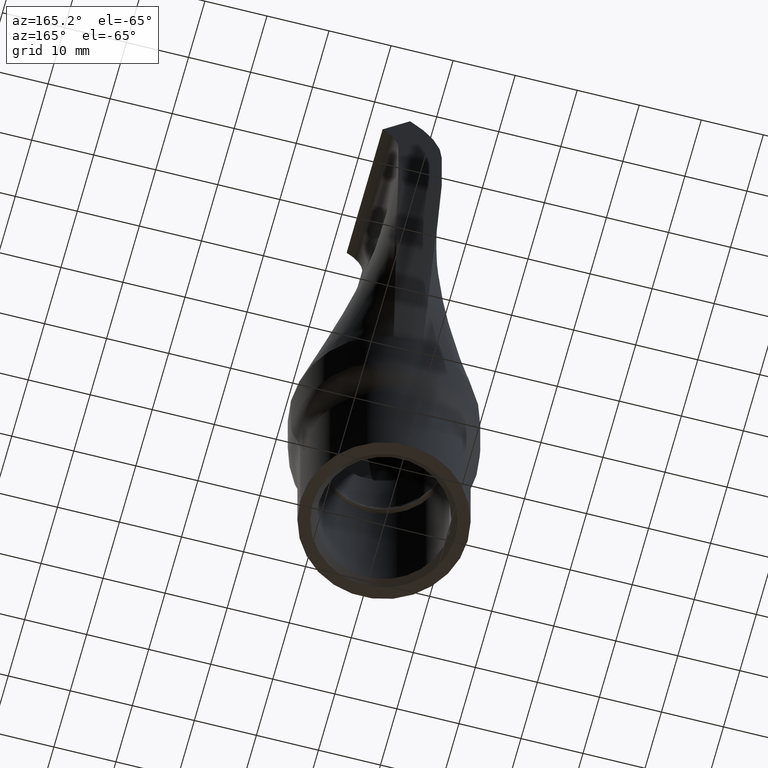
[diagram: clean part render]
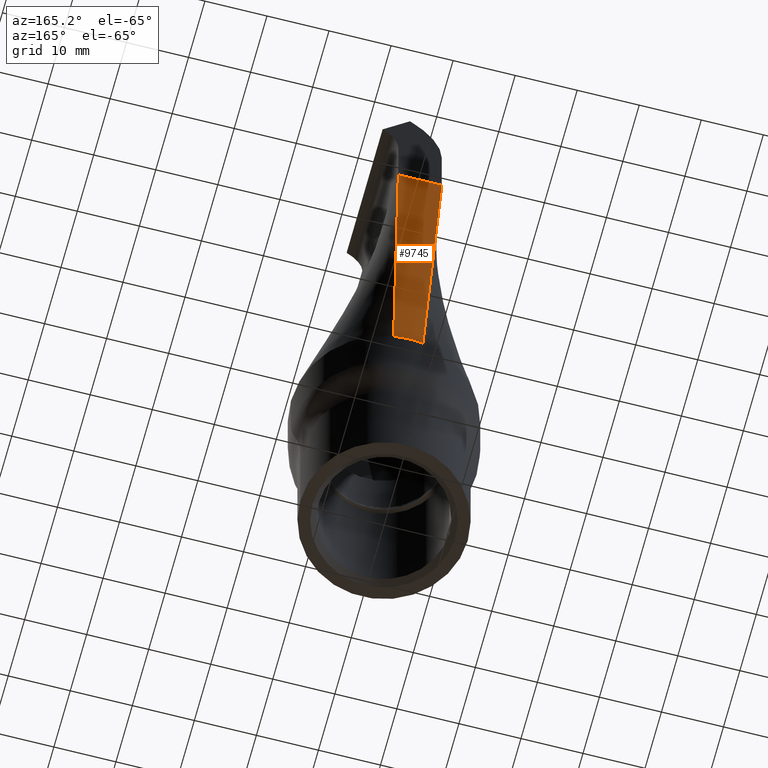
[diagram: same view with one face highlighted and labeled with its STEP entity id]
A machine part, auxiliary view. The second image highlights one B-rep face of the part: STEP entity #9745.
In plain terms, the highlighted face is a freeform B-spline surface patch.
Its self-contained STEP definition (entity closure, byte-faithful):
#513 = EDGE_CURVE ( 'NONE', #14015, #10929, #13533, .T. ) ;
#580 = ORIENTED_EDGE ( 'NONE', *, *, #513, .T. ) ;
#801 = CARTESIAN_POINT ( 'NONE',  ( 2.360731191527843700, 14.73934844198453000, 35.56000000000000200 ) ) ;
#851 = CARTESIAN_POINT ( 'NONE',  ( 2.356725731026977100, 14.81370459502670500, 36.00000000000000700 ) ) ;
#905 = CARTESIAN_POINT ( 'NONE',  ( 3.570000000000002900, 22.00000000000000400, 80.00000000000000000 ) ) ;
#1311 = DIRECTION ( 'NONE',  ( -0.02563530597302266300, -0.1611362089732852600, -0.9865991857108880000 ) ) ;
#1921 = CARTESIAN_POINT ( 'NONE',  ( 2.376169394718439700, 14.73685524299208700, 35.56000000000000200 ) ) ;
#1974 = CARTESIAN_POINT ( 'NONE',  ( 1.170466111313001500, 22.07070000000000200, 80.44439999999998700 ) ) ;
#2020 = CARTESIAN_POINT ( 'NONE',  ( -3.546666666666664200, 22.00000000000000400, 80.00000000000000000 ) ) ;
#2021 = LINE ( 'NONE', #7108, #3357 ) ;
#2136 = VERTEX_POINT ( 'NONE', #11332 ) ;
#3158 = CARTESIAN_POINT ( 'NONE',  ( 2.345292988337247300, 14.74184164097697400, 35.56000000000000200 ) ) ;
#3231 = ORIENTED_EDGE ( 'NONE', *, *, #4358, .T. ) ;
#3355 = CARTESIAN_POINT ( 'NONE',  ( -3.523333333333331200, 22.00000000000000400, 80.00000000000000000 ) ) ;
#3357 = VECTOR ( 'NONE', #10604, 1000.000000000000000 ) ;
#3413 = B_SPLINE_CURVE_WITH_KNOTS ( 'NONE', 3,
 ( #15667, #12025, #7240, #3523 ),
 .UNSPECIFIED., .F., .F.,
 ( 4, 4 ),
 ( 0.0000000000000000000, 0.004729419399636634900 ),
 .UNSPECIFIED. ) ;
#3523 = CARTESIAN_POINT ( 'NONE',  ( -2.356730390204583100, 14.81373377979307700, 36.00000000000000700 ) ) ;
#4354 = CARTESIAN_POINT ( 'NONE',  ( -2.340932838378592300, 22.07133498409400800, 80.44439999999998700 ) ) ;
#4358 = EDGE_CURVE ( 'NONE', #10929, #2136, #4780, .T. ) ;
#4409 = CARTESIAN_POINT ( 'NONE',  ( -1.166666666666667200, 22.00000000000000400, 79.99999999999998600 ) ) ;
#4510 = CARTESIAN_POINT ( 'NONE',  ( -2.333333333333333000, 22.00000000000000400, 79.99999999999998600 ) ) ;
#4562 = CARTESIAN_POINT ( 'NONE',  ( 2.333333333333333500, 22.00000000000000400, 79.99999999999998600 ) ) ;
#4780 = LINE ( 'NONE', #10778, #10851 ) ;
#4992 = VECTOR ( 'NONE', #5752, 1000.000000000000000 ) ;
#5611 = CARTESIAN_POINT ( 'NONE',  ( -3.511547070116625600, 22.07258158359023200, 80.44440000000000200 ) ) ;
#5717 = CARTESIAN_POINT ( 'NONE',  ( -1.580907091228487300, 14.93713028772192100, 36.00000000000000700 ) ) ;
#5752 = DIRECTION ( 'NONE',  ( 1.000000000000000000, 0.0000000000000000000, 0.0000000000000000000 ) ) ;
#5764 = CARTESIAN_POINT ( 'NONE',  ( 3.581783924020912400, 22.07265637956000500, 80.44440000000000200 ) ) ;
#5910 = EDGE_LOOP ( 'NONE', ( #12638, #6554, #580, #3231 ) ) ;
#6554 = ORIENTED_EDGE ( 'NONE', *, *, #13300, .T. ) ;
#6787 = CARTESIAN_POINT ( 'NONE',  ( 2.372242103822946600, 14.81123608117280100, 36.00000000000000700 ) ) ;
#6840 = CARTESIAN_POINT ( 'NONE',  ( 2.403274849414886100, 14.80629905346499300, 36.00000000000000700 ) ) ;
#6943 = CARTESIAN_POINT ( 'NONE',  ( -3.558371639386146400, 22.07263144757008200, 80.44440000000000200 ) ) ;
#7108 = CARTESIAN_POINT ( 'NONE',  ( -2.928362865513486600, 18.40685229751335700, 58.00000000000000000 ) ) ;
#7240 = CARTESIAN_POINT ( 'NONE',  ( -0.7971672668034427400, 15.06181617058033200, 36.00000001015075700 ) ) ;
#7393 = CARTESIAN_POINT ( 'NONE',  ( -2.356730390204583100, 14.81373377979307700, 36.00000000000000700 ) ) ;
#7983 = CARTESIAN_POINT ( 'NONE',  ( -3.534959354751386200, 22.07260651558015500, 80.44440000000000200 ) ) ;
#8083 = CARTESIAN_POINT ( 'NONE',  ( -2.360731191527842400, 14.73934844198453000, 35.56000000000000200 ) ) ;
#8192 = CARTESIAN_POINT ( 'NONE',  ( -2.356725731026975800, 14.81370459502670500, 36.00000000000000700 ) ) ;
#8619 = CARTESIAN_POINT ( 'NONE',  ( 3.500000000000002200, 22.00000000000000400, 79.99999999999998600 ) ) ;
#9193 = CARTESIAN_POINT ( 'NONE',  ( 0.7904840284156128300, 15.00000000000000200, 36.00000000000000000 ) ) ;
#9242 = CARTESIAN_POINT ( 'NONE',  ( 3.511547070116629600, 22.07258158359023200, 80.44440000000000200 ) ) ;
#9282 = CARTESIAN_POINT ( 'NONE',  ( -3.499999999999997800, 22.00000000000000400, 80.00000000000000000 ) ) ;
#9297 = CARTESIAN_POINT ( 'NONE',  ( -2.372242103822945800, 14.81123608117280100, 36.00000000000000700 ) ) ;
#9345 = CARTESIAN_POINT ( 'NONE',  ( -0.7867222020331007300, 14.92999999999999800, 35.55999999999999500 ) ) ;
#9394 = CARTESIAN_POINT ( 'NONE',  ( -3.499999999999997800, 22.00000000000000400, 80.00000000000000000 ) ) ;
#9607 = CARTESIAN_POINT ( 'NONE',  ( -3.569999999999997200, 22.00000000000000400, 80.00000000000000000 ) ) ;
#9745 = ADVANCED_FACE ( 'NONE', ( #11181 ), #12004, .T. ) ;
#10401 = CARTESIAN_POINT ( 'NONE',  ( -2.391607597909034800, 14.73436204399964400, 35.56000000000000200 ) ) ;
#10454 = CARTESIAN_POINT ( 'NONE',  ( -1.573382828807438700, 14.86650159059913900, 35.56000000000000200 ) ) ;
#10503 = CARTESIAN_POINT ( 'NONE',  ( 1.580907091228488200, 14.93713028772191900, 36.00000000000000700 ) ) ;
#10555 = CARTESIAN_POINT ( 'NONE',  ( 2.387758476618916600, 14.80876756731889700, 36.00000000000000700 ) ) ;
#10604 = DIRECTION ( 'NONE',  ( -0.02563530597302259700, 0.1611362089732852600, 0.9865991857108880000 ) ) ;
#10610 = CARTESIAN_POINT ( 'NONE',  ( 3.500000000000002200, 22.00000000000000400, 80.00000000000000000 ) ) ;
#10617 = CARTESIAN_POINT ( 'NONE',  ( -3.499999999999997800, 22.00000000000000400, 80.00000000000000000 ) ) ;
#10778 = CARTESIAN_POINT ( 'NONE',  ( 2.928362865513489700, 18.40685229751335700, 58.00000000000000000 ) ) ;
#10830 = VERTEX_POINT ( 'NONE', #7393 ) ;
#10851 = VECTOR ( 'NONE', #1311, 1000.000000000000000 ) ;
#10929 = VERTEX_POINT ( 'NONE', #8619 ) ;
#11181 = FACE_OUTER_BOUND ( 'NONE', #5910, .T. ) ;
#11332 = CARTESIAN_POINT ( 'NONE',  ( 2.356732032253578500, 14.81374406239035000, 36.00000000000000700 ) ) ;
#11359 = EDGE_CURVE ( 'NONE', #2136, #10830, #3413, .T. ) ;
#11608 = CARTESIAN_POINT ( 'NONE',  ( -1.170466111313002800, 22.07070000000000200, 80.44439999999998700 ) ) ;
#11660 = CARTESIAN_POINT ( 'NONE',  ( 2.391607597909036100, 14.73436204399964400, 35.56000000000000200 ) ) ;
#11758 = CARTESIAN_POINT ( 'NONE',  ( -0.7904840284156112700, 14.99999999999999800, 36.00000000000000000 ) ) ;
#11810 = CARTESIAN_POINT ( 'NONE',  ( 1.573382828807439600, 14.86650159059913900, 35.56000000000000200 ) ) ;
#12004 = B_SPLINE_SURFACE_WITH_KNOTS ( 'NONE', 3, 1, ( 
 ( #11660, #6840, #905, #5764 ),
 ( #1921, #10555, #14052, #15251 ),
 ( #801, #6787, #12987, #15346 ),
 ( #3158, #851, #10610, #9242 ),
 ( #11810, #10503, #4562, #15200 ),
 ( #12936, #9193, #14155, #1974 ),
 ( #9345, #11758, #4409, #11608 ),
 ( #10454, #5717, #4510, #4354 ),
 ( #12882, #8192, #9394, #5611 ),
 ( #8083, #9297, #3355, #7983 ),
 ( #14207, #15394, #2020, #6943 ),
 ( #10401, #12823, #9607, #15658 ) ),
 .UNSPECIFIED., .F., .F., .F.,
 ( 4, 3, 2, 3, 4 ),
 ( 2, 1, 1, 2 ),
 ( -0.01000000000000000000, 0.0000000000000000000, 0.5000000000000000000, 1.000000000000000000, 1.010000000000000000 ),
 ( -0.01000000000000000000, 0.0000000000000000000, 1.000000000000000000, 1.010100000000000000 ),
 .UNSPECIFIED. ) ;
#12025 = CARTESIAN_POINT ( 'NONE',  ( 0.7971671322148993200, 15.06181619264289000, 36.00000001403678600 ) ) ;
#12638 = ORIENTED_EDGE ( 'NONE', *, *, #11359, .T. ) ;
#12823 = CARTESIAN_POINT ( 'NONE',  ( -2.403274849414884800, 14.80629905346499300, 36.00000000000000700 ) ) ;
#12882 = CARTESIAN_POINT ( 'NONE',  ( -2.345292988337246000, 14.74184164097697400, 35.56000000000000200 ) ) ;
#12936 = CARTESIAN_POINT ( 'NONE',  ( 0.7867222020331022800, 14.93000000000000000, 35.55999999999999500 ) ) ;
#12987 = CARTESIAN_POINT ( 'NONE',  ( 3.523333333333335600, 22.00000000000000400, 80.00000000000000000 ) ) ;
#13300 = EDGE_CURVE ( 'NONE', #10830, #14015, #2021, .T. ) ;
#13533 = LINE ( 'NONE', #9282, #4992 ) ;
#14015 = VERTEX_POINT ( 'NONE', #10617 ) ;
#14052 = CARTESIAN_POINT ( 'NONE',  ( 3.546666666666669500, 22.00000000000000400, 80.00000000000000000 ) ) ;
#14155 = CARTESIAN_POINT ( 'NONE',  ( 1.166666666666665900, 22.00000000000000400, 79.99999999999998600 ) ) ;
#14207 = CARTESIAN_POINT ( 'NONE',  ( -2.376169394718438400, 14.73685524299208700, 35.56000000000000200 ) ) ;
#15200 = CARTESIAN_POINT ( 'NONE',  ( 2.340932838378592800, 22.07133498409400800, 80.44439999999998700 ) ) ;
#15251 = CARTESIAN_POINT ( 'NONE',  ( 3.558371639386151300, 22.07263144757008200, 80.44440000000000200 ) ) ;
#15346 = CARTESIAN_POINT ( 'NONE',  ( 3.534959354751390700, 22.07260651558015500, 80.44440000000000200 ) ) ;
#15394 = CARTESIAN_POINT ( 'NONE',  ( -2.387758476618915300, 14.80876756731889700, 36.00000000000000700 ) ) ;
#15658 = CARTESIAN_POINT ( 'NONE',  ( -3.581783924020907100, 22.07265637956000500, 80.44440000000000200 ) ) ;
#15667 = CARTESIAN_POINT ( 'NONE',  ( 2.356732032253578500, 14.81374406239035000, 36.00000000000000700 ) ) ;